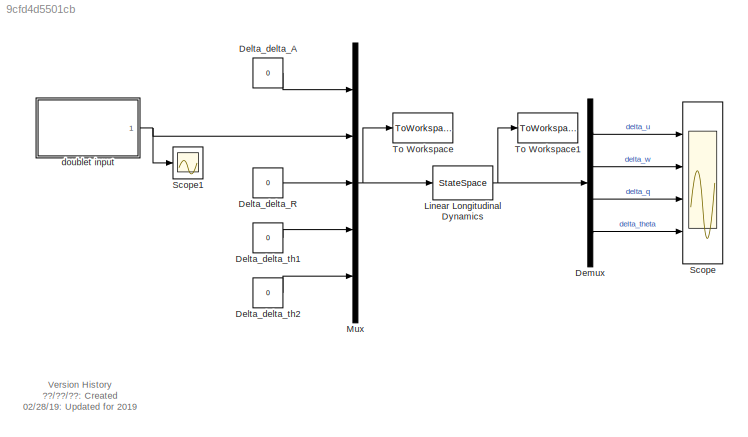
MODEL slx_9cfd4d5501cb
KIND model
CONFIG AbsTol = auto
CONFIG EnableMultiTasking = on
CONFIG FixedStep = auto
CONFIG MaxStep = auto
CONFIG MinStep = auto
CONFIG RelTol = 1e-3
CONFIG SampleTimeConstraint = Unconstrained
CONFIG Solver = ode45
CONFIG SolverName = ode45
CONFIG StartTime = 0.0
CONFIG StopTime = 60
BLOCK [Constant] Delta_delta_A
  Value = 0
BLOCK [Constant] Delta_delta_R
  Value = 0
BLOCK [Constant] Delta_delta_th1
  Value = 0
BLOCK [Constant] Delta_delta_th2
  Value = 0
BLOCK [Demux] Demux
  DisplayOption = bar
  Ports = [1, 4]
BLOCK [StateSpace] Linear Longitudinal Dynamics
  A = Along
  B = Blong
  C = Clong
  D = Dlong
  Ports = [1, 1]
  X0 = DeltaXlong0
BLOCK [Mux] Mux
  DisplayOption = bar
  Inputs = 5
  Ports = [5, 1]
BLOCK [Scope] Scope
  NumInputPorts = 4
  Ports = [4]
  ScopeSpecificationString = Simulink.scopes.TimeScopeBlockCfg('CurrentConfiguration', extmgr.ConfigurationSet(extmgr.Configuration('Core','General UI',true),extmgr.Configuration('Core','Source UI',true),extmgr.Configuration('Sources','WiredSimulink',true,'DataLoggingSaveFormat','StructureWithTime','DataLoggingLimitDataPoints',true,'DataLoggingDecimation','1','DataLoggingDecimateData',true),extmgr.Configuration('Visuals','Tim...<+3743ch>
BLOCK [Scope] Scope1
  NumInputPorts = 1
  Ports = [1]
  ScopeSpecificationString = Simulink.scopes.TimeScopeBlockCfg('CurrentConfiguration', extmgr.ConfigurationSet(extmgr.Configuration('Core','General UI',true),extmgr.Configuration('Core','Source UI',true),extmgr.Configuration('Sources','WiredSimulink',true,'DataLoggingVariableName','ScopeData1','DataLoggingSaveFormat','StructureWithTime','DataLoggingLimitDataPoints',true,'DataLoggingDecimation','1','DataLoggingDecimateData',tr...<+1751ch>
BLOCK [ToWorkspace] To Workspace
  MaxDataPoints = inf
  Ports = [1]
  SampleTime = -1
  SaveFormat = Structure With Time
  VariableName = simDeltaU
BLOCK [ToWorkspace] To Workspace1
  MaxDataPoints = inf
  Ports = [1]
  SampleTime = -1
  SaveFormat = Structure With Time
  VariableName = simDeltaX
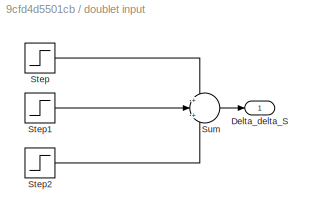
BLOCK [SubSystem] doublet input
  Ports = [0, 1]
  RequestExecContextInheritance = off
  Variant = off
BLOCK [Outport] doublet input/Delta_delta_S
  IconDisplay = Port number
BLOCK [Step] doublet input/Step
  After = doublet_magnitude
  SampleTime = 0
  Time = doublet_time
BLOCK [Step] doublet input/Step1
  After = -2*doublet_magnitude
  SampleTime = 0
  Time = doublet_time+doublet_duration
BLOCK [Step] doublet input/Step2
  After = doublet_magnitude
  SampleTime = 0
  Time = doublet_time+2*doublet_duration
BLOCK [Sum] doublet input/Sum
  IconShape = round
  InputSameDT = off
  Inputs = +|+|+
  OutDataTypeStr = Inherit: Inherit via internal rule
  Ports = [3, 1]
  SaturateOnIntegerOverflow = off
ANNOTATION (root): Version History ??/??/??: Created 02/28/19: Updated for 2019
LINE Delta_delta_A:1 -> Mux:1
LINE Delta_delta_R:1 -> Mux:3
LINE Delta_delta_th1:1 -> Mux:4
LINE Delta_delta_th2:1 -> Mux:5
LINE Demux:1 -> Scope:1
LINE Demux:2 -> Scope:2
LINE Demux:3 -> Scope:3
LINE Demux:4 -> Scope:4
NET Linear Longitudinal Dynamics:1 -> Demux:1, To Workspace1:1
NET Mux:1 -> Linear Longitudinal Dynamics:1, To Workspace:1
LINE doublet input/Step1:1 -> doublet input/Sum:2
LINE doublet input/Step2:1 -> doublet input/Sum:3
LINE doublet input/Step:1 -> doublet input/Sum:1
LINE doublet input/Sum:1 -> doublet input/Delta_delta_S:1
NET doublet input:1 -> Mux:2, Scope1:1
note: NET lines group one-source signal fan-out (src -> all destinations, sorted); 1:1 wires keep LINE
